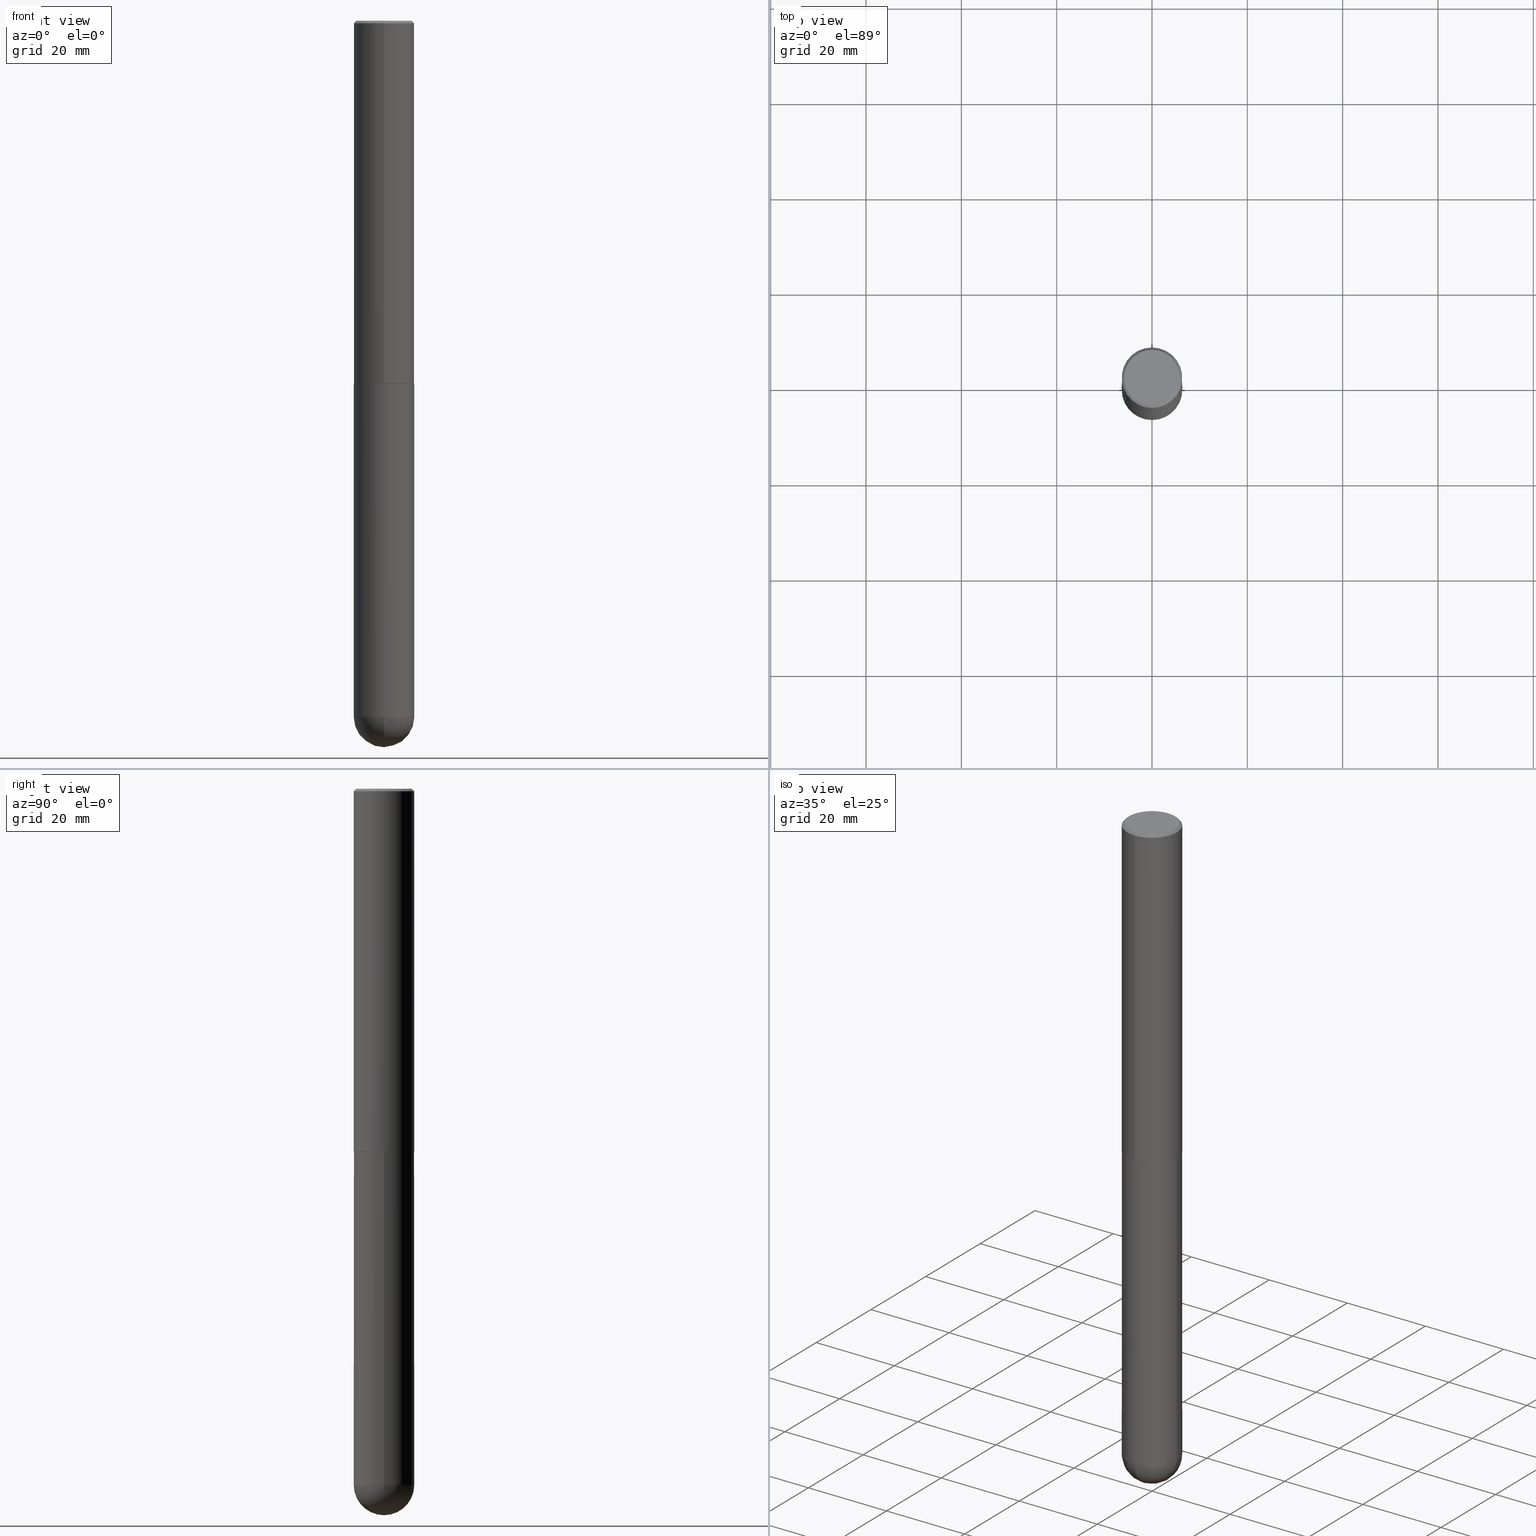
[diagram: canonical four-view strip — front | top / right | iso, engineering-drawing reading convention]
A machine part, canonical four-view strip (front | top / right | iso — engineering-drawing reading convention). The complete STEP part file that produces these views, byte-faithful:
ISO-10303-21;
HEADER;
FILE_DESCRIPTION (( 'STEP AP203' ),
    '1' );
FILE_NAME ('31924.STEP',
    '2024-02-21T17:15:00',
    ( '' ),
    ( '' ),
    'SwSTEP 2.0',
    'SolidWorks 2023',
    '' );
FILE_SCHEMA (( 'CONFIG_CONTROL_DESIGN' ));
ENDSEC;

DATA;
#1 = CONICAL_SURFACE ( 'NONE', #223, 0.2489999999999999991, 0.7853981633977213939 ) ;
#2 = CARTESIAN_POINT ( 'NONE',  ( 1.373032585765065255E-28, -2.055020006648814124E-14, -5.750000000000000888 ) ) ;
#3 = DIRECTION ( 'NONE',  ( -6.982962677686265922E-15, -1.000000000000000000, 3.491162485563369808E-15 ) ) ;
#4 = PERSON_AND_ORGANIZATION_ROLE ( 'classification_officer' ) ;
#5 = CC_DESIGN_PERSON_AND_ORGANIZATION_ASSIGNMENT ( #321, #36, ( #190 ) ) ;
#6 = CIRCLE ( 'NONE', #295, 0.2500000000000000000 ) ;
#7 = CONICAL_SURFACE ( 'NONE', #245, 0.2500000000000000000, 0.7853981633974466137 ) ;
#8 = ORIENTED_EDGE ( 'NONE', *, *, #379, .F. ) ;
#9 = PERSON_AND_ORGANIZATION ( #32, #260 ) ;
#10 = EDGE_LOOP ( 'NONE', ( #8, #371, #75, #17 ) ) ;
#11 = CARTESIAN_POINT ( 'NONE',  ( 1.406144563556453767E-28, -2.007601769834809252E-14, -5.750000000000000888 ) ) ;
#12 = DIRECTION ( 'NONE',  ( -2.445468806185136597E-29, 3.491481338843145583E-15, 1.000000000000000000 ) ) ;
#13 = AXIS2_PLACEMENT_3D ( 'NONE', #112, #152, #309 ) ;
#14 = FACE_OUTER_BOUND ( 'NONE', #402, .T. ) ;
#15 = APPROVAL ( #268, 'UNSPECIFIED' ) ;
#16 = DIRECTION ( 'NONE',  ( -2.445691460240369790E-29, 3.491162485563369808E-15, 1.000000000000000000 ) ) ;
#17 = ORIENTED_EDGE ( 'NONE', *, *, #254, .F. ) ;
#18 = DIRECTION ( 'NONE',  ( -1.000000000000000000, 6.982962677686265922E-15, -4.883557194083112340E-29 ) ) ;
#19 = LINE ( 'NONE', #369, #29 ) ;
#20 = VERTEX_POINT ( 'NONE', #338 ) ;
#21 = CARTESIAN_POINT ( 'NONE',  ( 1.745740669421566875E-15, 0.2499999999999999167, -0.02000000000000092676 ) ) ;
#22 = EDGE_CURVE ( 'NONE', #56, #395, #311, .T. ) ;
#23 = ORIENTED_EDGE ( 'NONE', *, *, #84, .T. ) ;
#24 = AXIS2_PLACEMENT_3D ( 'NONE', #2, #122, #412 ) ;
#25 = ORIENTED_EDGE ( 'NONE', *, *, #283, .T. ) ;
#26 = CARTESIAN_POINT ( 'NONE',  ( 0.000000000000000000, 0.000000000000000000, 0.000000000000000000 ) ) ;
#27 = PRODUCT_DEFINITION_SHAPE ( 'NONE', 'NONE',  #327 ) ;
#28 = CARTESIAN_POINT ( 'NONE',  ( 1.406144563556453767E-28, -2.007601769834809252E-14, -5.750000000000000888 ) ) ;
#29 = VECTOR ( 'NONE', #54, 39.37007874015748854 ) ;
#30 = FACE_OUTER_BOUND ( 'NONE', #105, .T. ) ;
#31 = EDGE_CURVE ( 'NONE', #140, #78, #185, .T. ) ;
#32 = PERSON ( 'UNSPECIFIED', 'UNSPECIFIED', 'UNSPECIFIED', ('UNSPECIFIED'), ('UNSPECIFIED'), ('UNSPECIFIED') ) ;
#33 = AXIS2_PLACEMENT_3D ( 'NONE', #82, #108, #147 ) ;
#34 = CC_DESIGN_APPROVAL ( #163, ( #349 ) ) ;
#35 = ORIENTED_EDGE ( 'NONE', *, *, #220, .F. ) ;
#36 = PERSON_AND_ORGANIZATION_ROLE ( 'creator' ) ;
#37 = EDGE_LOOP ( 'NONE', ( #142, #240, #362, #367 ) ) ;
#38 = PERSON_AND_ORGANIZATION ( #32, #260 ) ;
#39 = CIRCLE ( 'NONE', #83, 0.2500000000000000000 ) ;
#40 = CIRCLE ( 'NONE', #24, 0.2500000000000006661 ) ;
#41 = EDGE_LOOP ( 'NONE', ( #134, #109, #25, #80 ) ) ;
#42 = DATE_AND_TIME ( #325, #164 ) ;
#43 = DIRECTION ( 'NONE',  ( 6.982962677686265922E-15, 1.000000000000000000, -3.483106191921935554E-15 ) ) ;
#44 = CARTESIAN_POINT ( 'NONE',  ( 7.337074380721109369E-29, -1.047348745669011179E-14, -3.000000000000000444 ) ) ;
#45 = DIRECTION ( 'NONE',  ( -6.982962677686265133E-15, -1.000000000000000000, 4.388510833195603583E-15 ) ) ;
#46 = EDGE_CURVE ( 'NONE', #206, #278, #70, .T. ) ;
#47 = DIRECTION ( 'NONE',  ( -2.445691460240369790E-29, 3.491162485563369808E-15, 1.000000000000000000 ) ) ;
#48 = APPROVAL_ROLE ( '' ) ;
#49 = CALENDAR_DATE ( 2024, 21, 2 ) ;
#50 = VECTOR ( 'NONE', #405, 39.37007874015748143 ) ;
#51 = VECTOR ( 'NONE', #396, 39.37007874015748143 ) ;
#52 = EDGE_LOOP ( 'NONE', ( #132, #171, #332, #53, #236 ) ) ;
#53 = ORIENTED_EDGE ( 'NONE', *, *, #267, .F. ) ;
#54 = DIRECTION ( 'NONE',  ( 4.937700262164538576E-15, 0.7071067811865437980, -0.7071067811865511255 ) ) ;
#55 = ADVANCED_FACE ( 'NONE', ( #14 ), #343, .T. ) ;
#56 = VERTEX_POINT ( 'NONE', #120 ) ;
#57 = DIRECTION ( 'NONE',  ( -2.445468806185136877E-29, 3.491481338843145188E-15, 1.000000000000000000 ) ) ;
#58 = FACE_OUTER_BOUND ( 'NONE', #372, .T. ) ;
#59 = ADVANCED_FACE ( 'NONE', ( #30 ), #87, .T. ) ;
#60 = AXIS2_PLACEMENT_3D ( 'NONE', #239, #16, #330 ) ;
#61 = DATE_AND_TIME ( #121, #199 ) ;
#62 = CARTESIAN_POINT ( 'NONE',  ( 1.776356839400289119E-15, 0.2499999999999898415, -2.999000000000001442 ) ) ;
#63 = EDGE_CURVE ( 'NONE', #278, #78, #6, .T. ) ;
#64 = COORDINATED_UNIVERSAL_TIME_OFFSET ( 5, 0, .BEHIND. ) ;
#65 = PLANE ( 'NONE',  #184 ) ;
#66 = CARTESIAN_POINT ( 'NONE',  ( 7.336406418555409790E-29, -1.047444401652943635E-14, -3.000000000000000444 ) ) ;
#67 = ADVANCED_FACE ( 'NONE', ( #170 ), #73, .T. ) ;
#68 = APPROVAL_STATUS ( 'not_yet_approved' ) ;
#69 = AXIS2_PLACEMENT_3D ( 'NONE', #361, #394, #45 ) ;
#70 = LINE ( 'NONE', #329, #280 ) ;
#71 = DIRECTION ( 'NONE',  ( -2.445691460240369790E-29, 3.491162485563369808E-15, 1.000000000000000000 ) ) ;
#72 = ORIENTED_EDGE ( 'NONE', *, *, #133, .T. ) ;
#73 = CYLINDRICAL_SURFACE ( 'NONE', #222, 0.2500000000000001665 ) ;
#74 = CIRCLE ( 'NONE', #231, 0.2500000000000000000 ) ;
#75 = ORIENTED_EDGE ( 'NONE', *, *, #304, .F. ) ;
#76 = CC_DESIGN_PERSON_AND_ORGANIZATION_ASSIGNMENT ( #237, #389, ( #406 ) ) ;
#77 = FACE_OUTER_BOUND ( 'NONE', #251, .T. ) ;
#78 = VERTEX_POINT ( 'NONE', #218 ) ;
#79 = DIMENSIONAL_EXPONENTS ( 1.000000000000000000, 0.000000000000000000, 0.000000000000000000, 0.000000000000000000, 0.000000000000000000, 0.000000000000000000, 0.000000000000000000 ) ;
#80 = ORIENTED_EDGE ( 'NONE', *, *, #386, .F. ) ;
#81 = CIRCLE ( 'NONE', #69, 0.2489999999999999991 ) ;
#82 = CARTESIAN_POINT ( 'NONE',  ( 1.745740669421639647E-15, 0.2499999999999895084, -3.000000000000000888 ) ) ;
#83 = AXIS2_PLACEMENT_3D ( 'NONE', #357, #12, #135 ) ;
#84 = EDGE_CURVE ( 'NONE', #200, #395, #347, .T. ) ;
#85 = DIRECTION ( 'NONE',  ( 6.982962677686265922E-15, 1.000000000000000000, -4.370956789862809317E-15 ) ) ;
#86 = CARTESIAN_POINT ( 'NONE',  ( 4.891382920480753452E-31, -6.982324971126759042E-17, -0.02000000000000005593 ) ) ;
#87 = CYLINDRICAL_SURFACE ( 'NONE', #60, 0.2500000000000001665 ) ;
#88 = PRODUCT_RELATED_PRODUCT_CATEGORY ( 'detail', '', ( #406 ) ) ;
#89 = DATE_AND_TIME ( #382, #232 ) ;
#90 = CONICAL_SURFACE ( 'NONE', #358, 0.2500000000000000000, 0.7853981633974466137 ) ;
#91 = SPHERICAL_SURFACE ( 'NONE', #139, 0.2500000000000006661 ) ;
#92 = DIRECTION ( 'NONE',  ( -6.982962677686265922E-15, -1.000000000000000000, 3.483106191921935554E-15 ) ) ;
#93 = MECHANICAL_CONTEXT ( 'NONE', #364, 'mechanical' ) ;
#94 = ORIENTED_EDGE ( 'NONE', *, *, #46, .F. ) ;
#95 = CIRCLE ( 'NONE', #319, 0.2500000000000000000 ) ;
#96 = LOCAL_TIME ( 12, 15, 0.000000000000000000, #64 ) ;
#97 = EDGE_CURVE ( 'NONE', #20, #56, #39, .T. ) ;
#98 = ORIENTED_EDGE ( 'NONE', *, *, #63, .F. ) ;
#99 = CARTESIAN_POINT ( 'NONE',  ( 1.373032585765065255E-28, -2.055020006648814124E-14, -5.750000000000000888 ) ) ;
#100 = EDGE_CURVE ( 'NONE', #202, #392, #81, .T. ) ;
#101 = CLOSED_SHELL ( 'NONE', ( #317, #59, #263, #354, #67, #366, #410, #151 ) ) ;
#102 = CC_DESIGN_SECURITY_CLASSIFICATION ( #349, ( #190 ) ) ;
#103 = ORIENTED_EDGE ( 'NONE', *, *, #273, .F. ) ;
#104 = APPROVAL_ROLE ( '' ) ;
#105 = EDGE_LOOP ( 'NONE', ( #145, #212, #270, #148 ) ) ;
#106 = FACE_OUTER_BOUND ( 'NONE', #175, .T. ) ;
#107 = ORIENTED_EDGE ( 'NONE', *, *, #31, .T. ) ;
#108 = DIRECTION ( 'NONE',  ( 2.438088387897960049E-29, -3.491481338843145188E-15, -1.000000000000000000 ) ) ;
#109 = ORIENTED_EDGE ( 'NONE', *, *, #279, .T. ) ;
#110 = CARTESIAN_POINT ( 'NONE',  ( 0.2500000000000000000, -1.745740669421566678E-15, 1.219044193948983948E-29 ) ) ;
#111 = CARTESIAN_POINT ( 'NONE',  ( -1.738757706743806905E-15, -0.2490000000000104907, -2.999999999999999112 ) ) ;
#112 = CARTESIAN_POINT ( 'NONE',  ( 1.606081415867848364E-15, 0.2300000000000010369, -1.313091282373752052E-15 ) ) ;
#113 = ORIENTED_EDGE ( 'NONE', *, *, #181, .F. ) ;
#114 = UNCERTAINTY_MEASURE_WITH_UNIT (LENGTH_MEASURE( 1.000000000000000082E-05 ), #331, 'distance_accuracy_value', 'NONE');
#115 = CARTESIAN_POINT ( 'NONE',  ( -1.738757706743806905E-15, -0.2490000000000104907, -2.999999999999999112 ) ) ;
#116 = VERTEX_POINT ( 'NONE', #166 ) ;
#117 = DIRECTION ( 'NONE',  ( 2.445691460240369790E-29, -3.491162485563369808E-15, -1.000000000000000000 ) ) ;
#118 = VECTOR ( 'NONE', #339, 39.37007874015748143 ) ;
#119 = CARTESIAN_POINT ( 'NONE',  ( -1.745740669421495680E-15, -0.2500000000000108247, -2.998999999999999222 ) ) ;
#120 = CARTESIAN_POINT ( 'NONE',  ( -0.2500000000000000000, -1.349887401803851318E-14, -5.750000000000000888 ) ) ;
#121 = CALENDAR_DATE ( 2024, 21, 2 ) ;
#122 = DIRECTION ( 'NONE',  ( -1.000000000000000000, 7.105427357601001070E-15, -4.926315508542082329E-29 ) ) ;
#123 = ADVANCED_FACE ( 'NONE', ( #106 ), #138, .F. ) ;
#124 = PERSON_AND_ORGANIZATION ( #32, #260 ) ;
#125 = DIRECTION ( 'NONE',  ( 1.000000000000000000, -6.982962677686262766E-15, 0.000000000000000000 ) ) ;
#126 = PERSON_AND_ORGANIZATION_ROLE ( 'creator' ) ;
#127 = AXIS2_PLACEMENT_3D ( 'NONE', #28, #292, #125 ) ;
#128 = APPROVAL_DATE_TIME ( #89, #233 ) ;
#129 = DIRECTION ( 'NONE',  ( -6.982962677686265922E-15, -1.000000000000000000, 4.370956789862815627E-15 ) ) ;
#130 = CC_DESIGN_PERSON_AND_ORGANIZATION_ASSIGNMENT ( #124, #126, ( #327 ) ) ;
#131 = AXIS2_PLACEMENT_3D ( 'NONE', #303, #211, #391 ) ;
#132 = ORIENTED_EDGE ( 'NONE', *, *, #97, .T. ) ;
#133 = EDGE_CURVE ( 'NONE', #392, #206, #217, .T. ) ;
#134 = ORIENTED_EDGE ( 'NONE', *, *, #133, .F. ) ;
#135 = DIRECTION ( 'NONE',  ( 1.000000000000000000, -6.982962677686262766E-15, 0.000000000000000000 ) ) ;
#136 = APPROVAL_DATE_TIME ( #42, #163 ) ;
#137 = DIRECTION ( 'NONE',  ( -2.445691460240369790E-29, 3.491162485563369808E-15, 1.000000000000000000 ) ) ;
#138 = PLANE ( 'NONE',  #33 ) ;
#139 = AXIS2_PLACEMENT_3D ( 'NONE', #226, #287, #85 ) ;
#140 = VERTEX_POINT ( 'NONE', #119 ) ;
#141 = FACE_OUTER_BOUND ( 'NONE', #52, .T. ) ;
#142 = ORIENTED_EDGE ( 'NONE', *, *, #335, .F. ) ;
#143 = DIRECTION ( 'NONE',  ( 6.982962677686265922E-15, 1.000000000000000000, -4.370956789862809317E-15 ) ) ;
#144 = DIRECTION ( 'NONE',  ( -2.445691460240369790E-29, 3.491162485563369808E-15, 1.000000000000000000 ) ) ;
#145 = ORIENTED_EDGE ( 'NONE', *, *, #220, .T. ) ;
#146 = DIRECTION ( 'NONE',  ( -6.982962677686265133E-15, -1.000000000000000000, 4.388510833195603583E-15 ) ) ;
#147 = DIRECTION ( 'NONE',  ( -1.000000000000000000, 6.982962677686265922E-15, -4.876176775795935793E-29 ) ) ;
#148 = ORIENTED_EDGE ( 'NONE', *, *, #31, .F. ) ;
#149 = CARTESIAN_POINT ( 'NONE',  ( 0.000000000000000000, 0.000000000000000000, 0.000000000000000000 ) ) ;
#150 = CARTESIAN_POINT ( 'NONE',  ( -1.745740669421567664E-15, -0.2500000000000001665, 8.727906213908430437E-16 ) ) ;
#151 = ADVANCED_FACE ( 'NONE', ( #58 ), #312, .F. ) ;
#152 = DIRECTION ( 'NONE',  ( 2.445691460240369509E-29, -3.491162485563369808E-15, -1.000000000000000000 ) ) ;
#153 = CIRCLE ( 'NONE', #205, 0.2500000000000000000 ) ;
#154 = EDGE_CURVE ( 'NONE', #395, #200, #209, .T. ) ;
#155 = FACE_OUTER_BOUND ( 'NONE', #37, .T. ) ;
#156 = CARTESIAN_POINT ( 'NONE',  ( -1.715124499442882299E-15, -0.2500000000000000555, -0.01999999999999918510 ) ) ;
#157 = DIRECTION ( 'NONE',  ( -6.982962677686265922E-15, -1.000000000000000000, 3.491162485563369808E-15 ) ) ;
#158 = CARTESIAN_POINT ( 'NONE',  ( 7.337074380721108248E-29, -1.047348745669010864E-14, -2.999999999999999556 ) ) ;
#159 = PERSON_AND_ORGANIZATION ( #32, #260 ) ;
#160 = LENGTH_MEASURE_WITH_UNIT ( LENGTH_MEASURE( 0.02539999999999999897 ), #230 );
#161 = SECURITY_CLASSIFICATION_LEVEL ( 'unclassified' ) ;
#162 = VECTOR ( 'NONE', #285, 39.37007874015748854 ) ;
#163 = APPROVAL ( #68, 'UNSPECIFIED' ) ;
#164 = LOCAL_TIME ( 12, 15, 0.000000000000000000, #204 ) ;
#165 = CARTESIAN_POINT ( 'NONE',  ( 7.337074380721109369E-29, -1.047348745669011179E-14, -3.000000000000000444 ) ) ;
#166 = CARTESIAN_POINT ( 'NONE',  ( 0.2500000000000000000, -1.702097152686033033E-14, -5.750000000000000888 ) ) ;
#167 = CARTESIAN_POINT ( 'NONE',  ( -0.2500000000000000000, 1.776356839400250465E-15, -1.229733772563726445E-29 ) ) ;
#168 = LINE ( 'NONE', #111, #215 ) ;
#169 = VECTOR ( 'NONE', #57, 39.37007874015748143 ) ;
#170 = FACE_OUTER_BOUND ( 'NONE', #336, .T. ) ;
#171 = ORIENTED_EDGE ( 'NONE', *, *, #22, .T. ) ;
#172 = MANIFOLD_SOLID_BREP ( 'Body-Move/Copy2[1]', #353 ) ;
#173 = FACE_OUTER_BOUND ( 'NONE', #10, .T. ) ;
#174 = CC_DESIGN_DATE_AND_TIME_ASSIGNMENT ( #61, #191, ( #349 ) ) ;
#175 = EDGE_LOOP ( 'NONE', ( #23, #214 ) ) ;
#176 = MANIFOLD_SOLID_BREP ( 'Body-Move/Copy2[2]', #101 ) ;
#177 = CARTESIAN_POINT ( 'NONE',  ( 0.000000000000000000, 0.000000000000000000, 0.000000000000000000 ) ) ;
#178 = CARTESIAN_POINT ( 'NONE',  ( -1.776356839400113597E-15, -0.2500000000000206501, -5.750000000000000000 ) ) ;
#179 = DIRECTION ( 'NONE',  ( -6.982962677686265922E-15, -1.000000000000000000, 3.491162485563369808E-15 ) ) ;
#180 = ORIENTED_EDGE ( 'NONE', *, *, #100, .F. ) ;
#181 = EDGE_CURVE ( 'NONE', #247, #278, #19, .T. ) ;
#182 = DIRECTION ( 'NONE',  ( -2.445691460240369790E-29, 3.491162485563369808E-15, 1.000000000000000000 ) ) ;
#183 = APPLICATION_PROTOCOL_DEFINITION ( 'international standard', 'config_control_design', 1994, #364 ) ;
#184 = AXIS2_PLACEMENT_3D ( 'NONE', #158, #290, #3 ) ;
#185 = LINE ( 'NONE', #150, #50 ) ;
#186 = CARTESIAN_POINT ( 'NONE',  ( 0.2500000000000000000, -1.222018468595100303E-14, -3.000000000000000444 ) ) ;
#187 = DIRECTION ( 'NONE',  ( -2.445468806185136597E-29, 3.491481338843145583E-15, 1.000000000000000000 ) ) ;
#188 = DIRECTION ( 'NONE',  ( 1.000000000000000000, -6.982962677686266711E-15, 4.876176775795935793E-29 ) ) ;
#189 = AXIS2_PLACEMENT_3D ( 'NONE', #26, #253, #188 ) ;
#190 = PRODUCT_DEFINITION_FORMATION_WITH_SPECIFIED_SOURCE ( 'ANY', '', #406, .NOT_KNOWN. ) ;
#191 = DATE_TIME_ROLE ( 'classification_date' ) ;
#192 = DIRECTION ( 'NONE',  ( 2.445691460240369790E-29, -3.491162485563369808E-15, -1.000000000000000000 ) ) ;
#193 = LINE ( 'NONE', #156, #162 ) ;
#194 = COORDINATED_UNIVERSAL_TIME_OFFSET ( 5, 0, .BEHIND. ) ;
#195 = DIRECTION ( 'NONE',  ( -6.982962677686265133E-15, -1.000000000000000000, 4.388510833195603583E-15 ) ) ;
#196 = DIRECTION ( 'NONE',  ( 1.000000000000000000, 0.000000000000000000, 0.000000000000000000 ) ) ;
#197 = VERTEX_POINT ( 'NONE', #178 ) ;
#198 = AXIS2_PLACEMENT_3D ( 'NONE', #149, #351, #196 ) ;
#199 = LOCAL_TIME ( 12, 15, 0.000000000000000000, #262 ) ;
#200 = VERTEX_POINT ( 'NONE', #186 ) ;
#201 = DATE_AND_TIME ( #352, #96 ) ;
#202 = VERTEX_POINT ( 'NONE', #115 ) ;
#203 = EDGE_CURVE ( 'NONE', #208, #247, #407, .T. ) ;
#204 = COORDINATED_UNIVERSAL_TIME_OFFSET ( 5, 0, .BEHIND. ) ;
#205 = AXIS2_PLACEMENT_3D ( 'NONE', #11, #271, #393 ) ;
#206 = VERTEX_POINT ( 'NONE', #62 ) ;
#207 = EDGE_CURVE ( 'NONE', #78, #278, #95, .T. ) ;
#208 = VERTEX_POINT ( 'NONE', #380 ) ;
#209 = CIRCLE ( 'NONE', #296, 0.2500000000000000000 ) ;
#210 = ORIENTED_EDGE ( 'NONE', *, *, #203, .F. ) ;
#211 = DIRECTION ( 'NONE',  ( 1.000000000000000000, -6.982962677686265922E-15, 4.883557194083112340E-29 ) ) ;
#212 = ORIENTED_EDGE ( 'NONE', *, *, #46, .T. ) ;
#213 = ADVANCED_FACE ( 'NONE', ( #155 ), #91, .T. ) ;
#214 = ORIENTED_EDGE ( 'NONE', *, *, #154, .T. ) ;
#215 = VECTOR ( 'NONE', #243, 39.37007874015748143 ) ;
#216 = APPROVAL_PERSON_ORGANIZATION ( #385, #163, #48 ) ;
#217 = LINE ( 'NONE', #400, #118 ) ;
#218 = CARTESIAN_POINT ( 'NONE',  ( -1.715124499442882299E-15, -0.2500000000000000555, -0.01999999999999918510 ) ) ;
#219 = DIRECTION ( 'NONE',  ( 6.982962677686265922E-15, 1.000000000000000000, -3.483106191921935554E-15 ) ) ;
#220 = EDGE_CURVE ( 'NONE', #140, #206, #252, .T. ) ;
#221 = PERSON_AND_ORGANIZATION ( #32, #260 ) ;
#222 = AXIS2_PLACEMENT_3D ( 'NONE', #390, #144, #179 ) ;
#223 = AXIS2_PLACEMENT_3D ( 'NONE', #408, #289, #195 ) ;
#224 = LOCAL_TIME ( 12, 15, 0.000000000000000000, #363 ) ;
#225 = FACE_OUTER_BOUND ( 'NONE', #41, .T. ) ;
#226 = CARTESIAN_POINT ( 'NONE',  ( 1.373032585765065255E-28, -2.055020006648814124E-14, -5.750000000000000888 ) ) ;
#227 = DATE_TIME_ROLE ( 'creation_date' ) ;
#228 = CARTESIAN_POINT ( 'NONE',  ( 1.675911042644707718E-15, 0.2300000000000010369, -1.823215193067925174E-15 ) ) ;
#229 = CARTESIAN_POINT ( 'NONE',  ( 1.772804125721524114E-15, 0.2489999999999895075, -3.000000000000001332 ) ) ;
#230 =( LENGTH_UNIT ( ) NAMED_UNIT ( * ) SI_UNIT ( $, .METRE. ) );
#231 = AXIS2_PLACEMENT_3D ( 'NONE', #346, #187, #314 ) ;
#232 = LOCAL_TIME ( 12, 15, 0.000000000000000000, #194 ) ;
#233 = APPROVAL ( #350, 'UNSPECIFIED' ) ;
#234 = ORIENTED_EDGE ( 'NONE', *, *, #273, .T. ) ;
#235 = ORIENTED_EDGE ( 'NONE', *, *, #279, .F. ) ;
#236 = ORIENTED_EDGE ( 'NONE', *, *, #304, .T. ) ;
#237 = PERSON_AND_ORGANIZATION ( #32, #260 ) ;
#238 = FACE_OUTER_BOUND ( 'NONE', #249, .T. ) ;
#239 = CARTESIAN_POINT ( 'NONE',  ( 0.000000000000000000, 0.000000000000000000, 0.000000000000000000 ) ) ;
#240 = ORIENTED_EDGE ( 'NONE', *, *, #379, .T. ) ;
#241 = DIRECTION ( 'NONE',  ( -6.982962677686265922E-15, -1.000000000000000000, 3.491162485563369808E-15 ) ) ;
#242 = ORIENTED_EDGE ( 'NONE', *, *, #154, .F. ) ;
#243 = DIRECTION ( 'NONE',  ( -4.937700262165896205E-15, -0.7071067811867381980, 0.7071067811863568364 ) ) ;
#244 = DIRECTION ( 'NONE',  ( 1.000000000000000000, -6.982962677686262766E-15, 0.000000000000000000 ) ) ;
#245 = AXIS2_PLACEMENT_3D ( 'NONE', #275, #192, #219 ) ;
#246 = APPROVAL_PERSON_ORGANIZATION ( #221, #233, #256 ) ;
#247 = VERTEX_POINT ( 'NONE', #228 ) ;
#248 = CC_DESIGN_DATE_AND_TIME_ASSIGNMENT ( #201, #227, ( #327 ) ) ;
#249 = EDGE_LOOP ( 'NONE', ( #210, #293, #264, #113 ) ) ;
#250 = CARTESIAN_POINT ( 'NONE',  ( 2.495211384098321414E-44, -3.561850920008753567E-30, -1.020247821388346639E-15 ) ) ;
#251 = EDGE_LOOP ( 'NONE', ( #322, #72, #35, #308 ) ) ;
#252 = CIRCLE ( 'NONE', #355, 0.2500000000000003331 ) ;
#253 = DIRECTION ( 'NONE',  ( -2.445468806185136597E-29, 3.491481338843145583E-15, 1.000000000000000000 ) ) ;
#254 = EDGE_CURVE ( 'NONE', #197, #116, #74, .T. ) ;
#255 = DIRECTION ( 'NONE',  ( -2.445691460240369790E-29, 3.491162485563369808E-15, 1.000000000000000000 ) ) ;
#256 = APPROVAL_ROLE ( '' ) ;
#257 = FACE_OUTER_BOUND ( 'NONE', #387, .T. ) ;
#258 = CONICAL_SURFACE ( 'NONE', #315, 0.2489999999999999991, 0.7853981633977213939 ) ;
#259 = CC_DESIGN_PERSON_AND_ORGANIZATION_ASSIGNMENT ( #159, #323, ( #190 ) ) ;
#260 = ORGANIZATION ( 'UNSPECIFIED', 'UNSPECIFIED', '' ) ;
#261 = CARTESIAN_POINT ( 'NONE',  ( 7.334628689260870918E-29, -1.046999629420454738E-14, -2.999000000000000554 ) ) ;
#262 = COORDINATED_UNIVERSAL_TIME_OFFSET ( 5, 0, .BEHIND. ) ;
#263 = ADVANCED_FACE ( 'NONE', ( #238 ), #90, .T. ) ;
#264 = ORIENTED_EDGE ( 'NONE', *, *, #207, .T. ) ;
#265 = DIRECTION ( 'NONE',  ( -6.982962677686265922E-15, -1.000000000000000000, 3.483106191921935554E-15 ) ) ;
#266 = DIRECTION ( 'NONE',  ( -6.982962677686265133E-15, -1.000000000000000000, 4.388510833195603583E-15 ) ) ;
#267 = EDGE_CURVE ( 'NONE', #116, #200, #297, .T. ) ;
#268 = APPROVAL_STATUS ( 'not_yet_approved' ) ;
#269 = CIRCLE ( 'NONE', #310, 0.2500000000000003331 ) ;
#270 = ORIENTED_EDGE ( 'NONE', *, *, #207, .F. ) ;
#271 = DIRECTION ( 'NONE',  ( -2.445468806185136597E-29, 3.491481338843145583E-15, 1.000000000000000000 ) ) ;
#272 = ORIENTED_EDGE ( 'NONE', *, *, #203, .T. ) ;
#273 = EDGE_CURVE ( 'NONE', #247, #208, #401, .T. ) ;
#274 = ORIENTED_EDGE ( 'NONE', *, *, #22, .F. ) ;
#275 = CARTESIAN_POINT ( 'NONE',  ( 4.891382920480753452E-31, -6.982324971126759042E-17, -0.02000000000000005593 ) ) ;
#276 = CIRCLE ( 'NONE', #127, 0.2500000000000000000 ) ;
#277 = ORIENTED_EDGE ( 'NONE', *, *, #63, .T. ) ;
#278 = VERTEX_POINT ( 'NONE', #21 ) ;
#279 = EDGE_CURVE ( 'NONE', #392, #202, #348, .T. ) ;
#280 = VECTOR ( 'NONE', #47, 39.37007874015748143 ) ;
#281 = AXIS2_PLACEMENT_3D ( 'NONE', #399, #360, #241 ) ;
#282 = CARTESIAN_POINT ( 'NONE',  ( 4.891382920480753452E-31, -6.982324971126759042E-17, -0.02000000000000005593 ) ) ;
#283 = EDGE_CURVE ( 'NONE', #202, #140, #168, .T. ) ;
#284 = DIRECTION ( 'NONE',  ( -6.982962677686265922E-15, -1.000000000000000000, 4.370956789862815627E-15 ) ) ;
#285 = DIRECTION ( 'NONE',  ( -4.851104656540954809E-15, -0.7071067811865486830, -0.7071067811865462405 ) ) ;
#286 =( GEOMETRIC_REPRESENTATION_CONTEXT ( 3 ) GLOBAL_UNCERTAINTY_ASSIGNED_CONTEXT ( ( #114 ) ) GLOBAL_UNIT_ASSIGNED_CONTEXT ( ( #331, #307, #409 ) ) REPRESENTATION_CONTEXT ( 'NONE', 'WORKASPACE' ) );
#287 = DIRECTION ( 'NONE',  ( -1.000000000000000000, 6.982962677686265922E-15, -4.883557194083112340E-29 ) ) ;
#288 = CC_DESIGN_APPROVAL ( #15, ( #327 ) ) ;
#289 = DIRECTION ( 'NONE',  ( -2.445691460240369790E-29, 3.491162485563369808E-15, 1.000000000000000000 ) ) ;
#290 = DIRECTION ( 'NONE',  ( -2.445691460240369509E-29, 3.491162485563369808E-15, 1.000000000000000000 ) ) ;
#291 = ORIENTED_EDGE ( 'NONE', *, *, #254, .T. ) ;
#292 = DIRECTION ( 'NONE',  ( -2.445468806185136597E-29, 3.491481338843145583E-15, 1.000000000000000000 ) ) ;
#293 = ORIENTED_EDGE ( 'NONE', *, *, #376, .T. ) ;
#294 = ADVANCED_FACE ( 'NONE', ( #141 ), #328, .T. ) ;
#295 = AXIS2_PLACEMENT_3D ( 'NONE', #337, #182, #265 ) ;
#296 = AXIS2_PLACEMENT_3D ( 'NONE', #404, #378, #244 ) ;
#297 = LINE ( 'NONE', #110, #51 ) ;
#298 = CC_DESIGN_PERSON_AND_ORGANIZATION_ASSIGNMENT ( #38, #4, ( #349 ) ) ;
#299 = FACE_OUTER_BOUND ( 'NONE', #301, .T. ) ;
#300 = APPLICATION_PROTOCOL_DEFINITION ( 'international standard', 'config_control_design', 1994, #384 ) ;
#301 = EDGE_LOOP ( 'NONE', ( #356, #103, #334, #277 ) ) ;
#302 = ORIENTED_EDGE ( 'NONE', *, *, #267, .T. ) ;
#303 = CARTESIAN_POINT ( 'NONE',  ( 1.373032585765065255E-28, -2.055020006648814124E-14, -5.750000000000000888 ) ) ;
#304 = EDGE_CURVE ( 'NONE', #116, #20, #153, .T. ) ;
#305 = VERTEX_POINT ( 'NONE', #365 ) ;
#306 = SPHERICAL_SURFACE ( 'NONE', #370, 0.2500000000000006661 ) ;
#307 =( NAMED_UNIT ( * ) PLANE_ANGLE_UNIT ( ) SI_UNIT ( $, .RADIAN. ) );
#308 = ORIENTED_EDGE ( 'NONE', *, *, #283, .F. ) ;
#309 = DIRECTION ( 'NONE',  ( 6.982962677686265922E-15, 1.000000000000000000, -3.491162485563369808E-15 ) ) ;
#310 = AXIS2_PLACEMENT_3D ( 'NONE', #381, #255, #129 ) ;
#311 = LINE ( 'NONE', #167, #169 ) ;
#312 = PLANE ( 'NONE',  #13 ) ;
#313 = CARTESIAN_POINT ( 'NONE',  ( -0.2500000000000000000, -1.349887401803851318E-14, -3.000000000000000444 ) ) ;
#314 = DIRECTION ( 'NONE',  ( 1.000000000000000000, -6.982962677686262766E-15, 0.000000000000000000 ) ) ;
#315 = AXIS2_PLACEMENT_3D ( 'NONE', #165, #137, #266 ) ;
#316 = APPROVAL_DATE_TIME ( #411, #15 ) ;
#317 = ADVANCED_FACE ( 'NONE', ( #77 ), #258, .T. ) ;
#318 = DIRECTION ( 'NONE',  ( -2.445691460240369790E-29, 3.491162485563369808E-15, 1.000000000000000000 ) ) ;
#319 = AXIS2_PLACEMENT_3D ( 'NONE', #282, #318, #92 ) ;
#320 = ORIENTED_EDGE ( 'NONE', *, *, #403, .T. ) ;
#321 = PERSON_AND_ORGANIZATION ( #32, #260 ) ;
#322 = ORIENTED_EDGE ( 'NONE', *, *, #100, .T. ) ;
#323 = PERSON_AND_ORGANIZATION_ROLE ( 'design_supplier' ) ;
#324 = DIRECTION ( 'NONE',  ( 1.000000000000000000, -6.982962677686262766E-15, 0.000000000000000000 ) ) ;
#325 = CALENDAR_DATE ( 2024, 21, 2 ) ;
#326 = APPROVAL_PERSON_ORGANIZATION ( #9, #15, #104 ) ;
#327 = PRODUCT_DEFINITION ( 'UNKNOWN', '', #190, #373 ) ;
#328 = CYLINDRICAL_SURFACE ( 'NONE', #377, 0.2500000000000000000 ) ;
#329 = CARTESIAN_POINT ( 'NONE',  ( 1.776356839400251254E-15, 0.2500000000000001665, -8.727906213908430437E-16 ) ) ;
#330 = DIRECTION ( 'NONE',  ( -6.982962677686265922E-15, -1.000000000000000000, 3.491162485563369808E-15 ) ) ;
#331 =( CONVERSION_BASED_UNIT ( 'INCH', #160 ) LENGTH_UNIT ( ) NAMED_UNIT ( #79 ) );
#332 = ORIENTED_EDGE ( 'NONE', *, *, #84, .F. ) ;
#333 = AXIS2_PLACEMENT_3D ( 'NONE', #44, #71, #146 ) ;
#334 = ORIENTED_EDGE ( 'NONE', *, *, #181, .T. ) ;
#335 = EDGE_CURVE ( 'NONE', #305, #20, #340, .T. ) ;
#336 = EDGE_LOOP ( 'NONE', ( #94, #397, #107, #98 ) ) ;
#337 = CARTESIAN_POINT ( 'NONE',  ( 4.891382920480753452E-31, -6.982324971126759042E-17, -0.02000000000000005593 ) ) ;
#338 = CARTESIAN_POINT ( 'NONE',  ( 1.745740669421707884E-15, 0.2499999999999800160, -5.750000000000001776 ) ) ;
#339 = DIRECTION ( 'NONE',  ( 5.024295867789434219E-15, 0.7071067811867430830, 0.7071067811863519514 ) ) ;
#340 = CIRCLE ( 'NONE', #131, 0.2500000000000006661 ) ;
#341 = DIRECTION ( 'NONE',  ( -2.445468806185136597E-29, 3.491481338843145583E-15, 1.000000000000000000 ) ) ;
#342 = CC_DESIGN_APPROVAL ( #233, ( #190 ) ) ;
#343 = CYLINDRICAL_SURFACE ( 'NONE', #189, 0.2500000000000000000 ) ;
#344 = DIRECTION ( 'NONE',  ( -2.445691460240369790E-29, 3.491162485563369808E-15, 1.000000000000000000 ) ) ;
#345 = ADVANCED_FACE ( 'NONE', ( #173 ), #306, .T. ) ;
#346 = CARTESIAN_POINT ( 'NONE',  ( 1.406144563556453767E-28, -2.007601769834809252E-14, -5.750000000000000888 ) ) ;
#347 = CIRCLE ( 'NONE', #398, 0.2500000000000000000 ) ;
#348 = CIRCLE ( 'NONE', #333, 0.2489999999999999991 ) ;
#349 = SECURITY_CLASSIFICATION ( '', '', #161 ) ;
#350 = APPROVAL_STATUS ( 'not_yet_approved' ) ;
#351 = DIRECTION ( 'NONE',  ( 0.000000000000000000, 0.000000000000000000, 1.000000000000000000 ) ) ;
#352 = CALENDAR_DATE ( 2024, 21, 2 ) ;
#353 = CLOSED_SHELL ( 'NONE', ( #294, #213, #345, #123, #55 ) ) ;
#354 = ADVANCED_FACE ( 'NONE', ( #299 ), #7, .T. ) ;
#355 = AXIS2_PLACEMENT_3D ( 'NONE', #261, #344, #284 ) ;
#356 = ORIENTED_EDGE ( 'NONE', *, *, #376, .F. ) ;
#357 = CARTESIAN_POINT ( 'NONE',  ( 1.406144563556453767E-28, -2.007601769834809252E-14, -5.750000000000000888 ) ) ;
#358 = AXIS2_PLACEMENT_3D ( 'NONE', #86, #117, #43 ) ;
#359 = SHAPE_DEFINITION_REPRESENTATION ( #27, #374 ) ;
#360 = DIRECTION ( 'NONE',  ( -2.445691460240369790E-29, 3.491162485563369808E-15, 1.000000000000000000 ) ) ;
#361 = CARTESIAN_POINT ( 'NONE',  ( 7.337074380721109369E-29, -1.047348745669011179E-14, -3.000000000000000444 ) ) ;
#362 = ORIENTED_EDGE ( 'NONE', *, *, #403, .F. ) ;
#363 = COORDINATED_UNIVERSAL_TIME_OFFSET ( 5, 0, .BEHIND. ) ;
#364 = APPLICATION_CONTEXT ( 'configuration controlled 3d designs of mechanical parts and assemblies' ) ;
#365 = CARTESIAN_POINT ( 'NONE',  ( 1.435238263781167989E-28, -2.140776231620958900E-14, -6.000000000000001776 ) ) ;
#366 = ADVANCED_FACE ( 'NONE', ( #225 ), #1, .T. ) ;
#367 = ORIENTED_EDGE ( 'NONE', *, *, #97, .F. ) ;
#368 = DIRECTION ( 'NONE',  ( -2.445468806185136597E-29, 3.491481338843145583E-15, 1.000000000000000000 ) ) ;
#369 = CARTESIAN_POINT ( 'NONE',  ( 1.745740669421566875E-15, 0.2499999999999999167, -0.02000000000000092676 ) ) ;
#370 = AXIS2_PLACEMENT_3D ( 'NONE', #99, #18, #143 ) ;
#371 = ORIENTED_EDGE ( 'NONE', *, *, #335, .T. ) ;
#372 = EDGE_LOOP ( 'NONE', ( #234, #272 ) ) ;
#373 = DESIGN_CONTEXT ( 'detailed design', #384, 'design' ) ;
#374 = ADVANCED_BREP_SHAPE_REPRESENTATION ( '31924', ( #172, #176, #198 ), #286 ) ;
#375 = DIRECTION ( 'NONE',  ( -2.445691460240369790E-29, 3.491162485563369808E-15, 1.000000000000000000 ) ) ;
#376 = EDGE_CURVE ( 'NONE', #208, #78, #193, .T. ) ;
#377 = AXIS2_PLACEMENT_3D ( 'NONE', #177, #368, #388 ) ;
#378 = DIRECTION ( 'NONE',  ( -2.445468806185136597E-29, 3.491481338843145583E-15, 1.000000000000000000 ) ) ;
#379 = EDGE_CURVE ( 'NONE', #305, #197, #40, .T. ) ;
#380 = CARTESIAN_POINT ( 'NONE',  ( -1.646519519465170715E-15, -0.2300000000000010369, -2.172804497087680306E-16 ) ) ;
#381 = CARTESIAN_POINT ( 'NONE',  ( 7.334628689260870918E-29, -1.046999629420454738E-14, -2.999000000000000554 ) ) ;
#382 = CALENDAR_DATE ( 2024, 21, 2 ) ;
#383 = AXIS2_PLACEMENT_3D ( 'NONE', #250, #375, #157 ) ;
#384 = APPLICATION_CONTEXT ( 'configuration controlled 3d designs of mechanical parts and assemblies' ) ;
#385 = PERSON_AND_ORGANIZATION ( #32, #260 ) ;
#386 = EDGE_CURVE ( 'NONE', #206, #140, #269, .T. ) ;
#387 = EDGE_LOOP ( 'NONE', ( #180, #235 ) ) ;
#388 = DIRECTION ( 'NONE',  ( 1.000000000000000000, -6.982962677686266711E-15, 4.876176775795935793E-29 ) ) ;
#389 = PERSON_AND_ORGANIZATION_ROLE ( 'design_owner' ) ;
#390 = CARTESIAN_POINT ( 'NONE',  ( 0.000000000000000000, 0.000000000000000000, 0.000000000000000000 ) ) ;
#391 = DIRECTION ( 'NONE',  ( 6.982962677686266711E-15, 1.000000000000000000, 0.000000000000000000 ) ) ;
#392 = VERTEX_POINT ( 'NONE', #229 ) ;
#393 = DIRECTION ( 'NONE',  ( 1.000000000000000000, -6.982962677686262766E-15, 0.000000000000000000 ) ) ;
#394 = DIRECTION ( 'NONE',  ( -2.445691460240369790E-29, 3.491162485563369808E-15, 1.000000000000000000 ) ) ;
#395 = VERTEX_POINT ( 'NONE', #313 ) ;
#396 = DIRECTION ( 'NONE',  ( -2.445468806185136877E-29, 3.491481338843145188E-15, 1.000000000000000000 ) ) ;
#397 = ORIENTED_EDGE ( 'NONE', *, *, #386, .T. ) ;
#398 = AXIS2_PLACEMENT_3D ( 'NONE', #66, #341, #324 ) ;
#399 = CARTESIAN_POINT ( 'NONE',  ( 2.495211384098321414E-44, -3.561850920008753567E-30, -1.020247821388346639E-15 ) ) ;
#400 = CARTESIAN_POINT ( 'NONE',  ( 1.769251412042722426E-15, 0.2489999999999895075, -3.000000000000001332 ) ) ;
#401 = CIRCLE ( 'NONE', #281, 0.2300000000000010369 ) ;
#402 = EDGE_LOOP ( 'NONE', ( #274, #320, #291, #302, #242 ) ) ;
#403 = EDGE_CURVE ( 'NONE', #56, #197, #276, .T. ) ;
#404 = CARTESIAN_POINT ( 'NONE',  ( 7.336406418555409790E-29, -1.047444401652943635E-14, -3.000000000000000444 ) ) ;
#405 = DIRECTION ( 'NONE',  ( -2.445691460240369790E-29, 3.491162485563369808E-15, 1.000000000000000000 ) ) ;
#406 = PRODUCT ( '31924', '31924', '', ( #93 ) ) ;
#407 = CIRCLE ( 'NONE', #383, 0.2300000000000010369 ) ;
#408 = CARTESIAN_POINT ( 'NONE',  ( 7.337074380721109369E-29, -1.047348745669011179E-14, -3.000000000000000444 ) ) ;
#409 =( NAMED_UNIT ( * ) SI_UNIT ( $, .STERADIAN. ) SOLID_ANGLE_UNIT ( ) );
#410 = ADVANCED_FACE ( 'NONE', ( #257 ), #65, .F. ) ;
#411 = DATE_AND_TIME ( #49, #224 ) ;
#412 = DIRECTION ( 'NONE',  ( -7.105427357601001859E-15, -1.000000000000000000, 0.000000000000000000 ) ) ;
ENDSEC;
END-ISO-10303-21;
